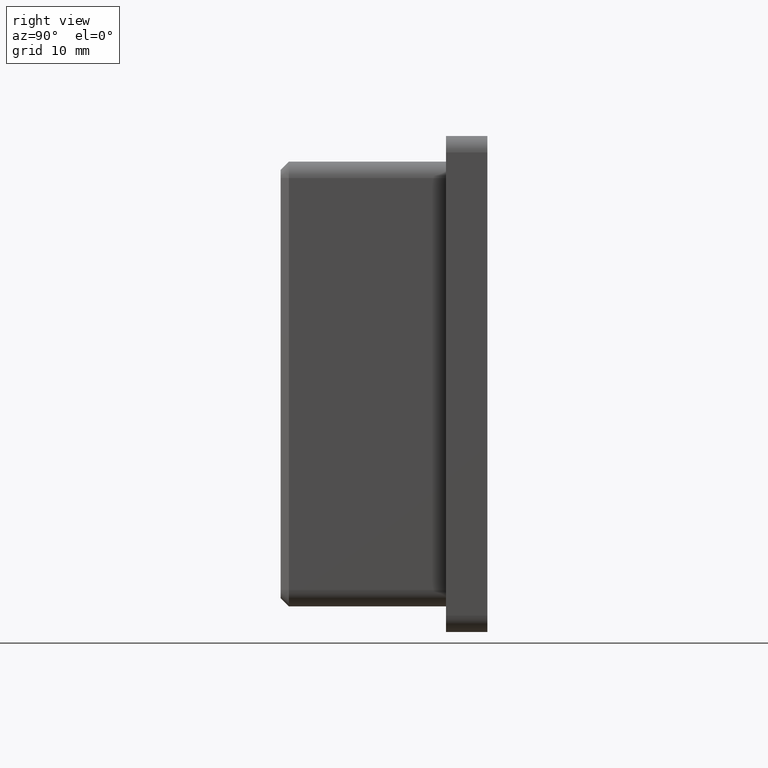
[diagram: clean part render]
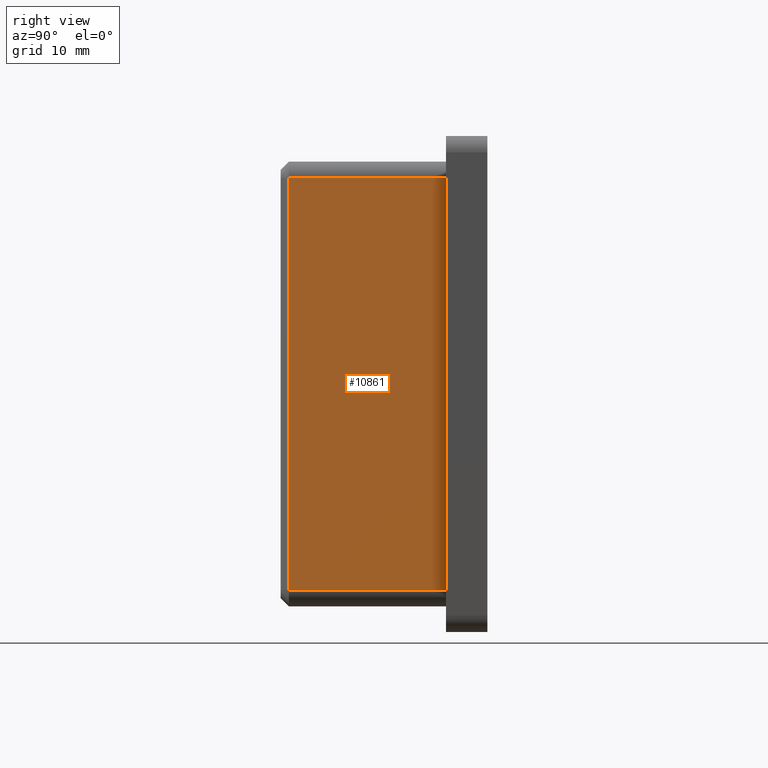
[diagram: same view with one face highlighted and labeled with its STEP entity id]
A machine part, right view. The second image highlights one B-rep face of the part: STEP entity #10861.
In plain terms, the highlighted planar face has unit normal (-1, 0, -0).
Its self-contained STEP definition (entity closure, byte-faithful):
#504 = CARTESIAN_POINT ( 'NONE',  ( 26.90000000000000200, 0.0000000000000000000, 24.90000000000000600 ) ) ;
#714 = CARTESIAN_POINT ( 'NONE',  ( 26.90000000000000200, 0.0000000000000000000, 26.90000000000000200 ) ) ;
#807 = CARTESIAN_POINT ( 'NONE',  ( 26.90000000000000200, -20.00000000000000000, 24.90000000000000600 ) ) ;
#1618 = DIRECTION ( 'NONE',  ( -0.0000000000000000000, -0.0000000000000000000, 1.000000000000000000 ) ) ;
#2139 = DIRECTION ( 'NONE',  ( 0.0000000000000000000, 0.0000000000000000000, -1.000000000000000000 ) ) ;
#2800 = LINE ( 'NONE', #15772, #10686 ) ;
#3038 = VECTOR ( 'NONE', #2139, 1000.000000000000000 ) ;
#3463 = EDGE_CURVE ( 'NONE', #7716, #5946, #2800, .T. ) ;
#3854 = VECTOR ( 'NONE', #1618, 1000.000000000000000 ) ;
#4005 = DIRECTION ( 'NONE',  ( 0.0000000000000000000, 1.000000000000000000, 0.0000000000000000000 ) ) ;
#4533 = ORIENTED_EDGE ( 'NONE', *, *, #15502, .T. ) ;
#4777 = DIRECTION ( 'NONE',  ( -0.0000000000000000000, -1.000000000000000000, -0.0000000000000000000 ) ) ;
#5748 = PLANE ( 'NONE',  #6295 ) ;
#5946 = VERTEX_POINT ( 'NONE', #13339 ) ;
#6073 = LINE ( 'NONE', #807, #11333 ) ;
#6284 = CARTESIAN_POINT ( 'NONE',  ( 26.90000000000000200, -19.00000000000000000, 24.90000000000000600 ) ) ;
#6295 = AXIS2_PLACEMENT_3D ( 'NONE', #9431, #13429, #10883 ) ;
#6491 = LINE ( 'NONE', #714, #3854 ) ;
#7505 = FACE_OUTER_BOUND ( 'NONE', #13202, .T. ) ;
#7716 = VERTEX_POINT ( 'NONE', #8069 ) ;
#7932 = ORIENTED_EDGE ( 'NONE', *, *, #3463, .T. ) ;
#8069 = CARTESIAN_POINT ( 'NONE',  ( 26.90000000000000200, -19.00000000000000000, -24.90000000000000900 ) ) ;
#9431 = CARTESIAN_POINT ( 'NONE',  ( 26.90000000000000200, -20.00000000000000000, 26.90000000000000200 ) ) ;
#9935 = LINE ( 'NONE', #14674, #3038 ) ;
#10686 = VECTOR ( 'NONE', #4005, 1000.000000000000000 ) ;
#10861 = ADVANCED_FACE ( 'NONE', ( #7505 ), #5748, .F. ) ;
#10883 = DIRECTION ( 'NONE',  ( -0.0000000000000000000, 0.0000000000000000000, 1.000000000000000000 ) ) ;
#11262 = ORIENTED_EDGE ( 'NONE', *, *, #13937, .T. ) ;
#11333 = VECTOR ( 'NONE', #4777, 1000.000000000000000 ) ;
#11473 = VERTEX_POINT ( 'NONE', #6284 ) ;
#13202 = EDGE_LOOP ( 'NONE', ( #15766, #4533, #7932, #11262 ) ) ;
#13339 = CARTESIAN_POINT ( 'NONE',  ( 26.90000000000000200, 0.0000000000000000000, -24.90000000000000900 ) ) ;
#13429 = DIRECTION ( 'NONE',  ( -1.000000000000000000, 0.0000000000000000000, -0.0000000000000000000 ) ) ;
#13937 = EDGE_CURVE ( 'NONE', #5946, #15253, #6491, .T. ) ;
#14273 = EDGE_CURVE ( 'NONE', #15253, #11473, #6073, .T. ) ;
#14674 = CARTESIAN_POINT ( 'NONE',  ( 26.90000000000000200, -19.00000000000000000, -24.90000000000000900 ) ) ;
#15253 = VERTEX_POINT ( 'NONE', #504 ) ;
#15502 = EDGE_CURVE ( 'NONE', #11473, #7716, #9935, .T. ) ;
#15766 = ORIENTED_EDGE ( 'NONE', *, *, #14273, .T. ) ;
#15772 = CARTESIAN_POINT ( 'NONE',  ( 26.90000000000000200, -20.00000000000000000, -24.90000000000000900 ) ) ;